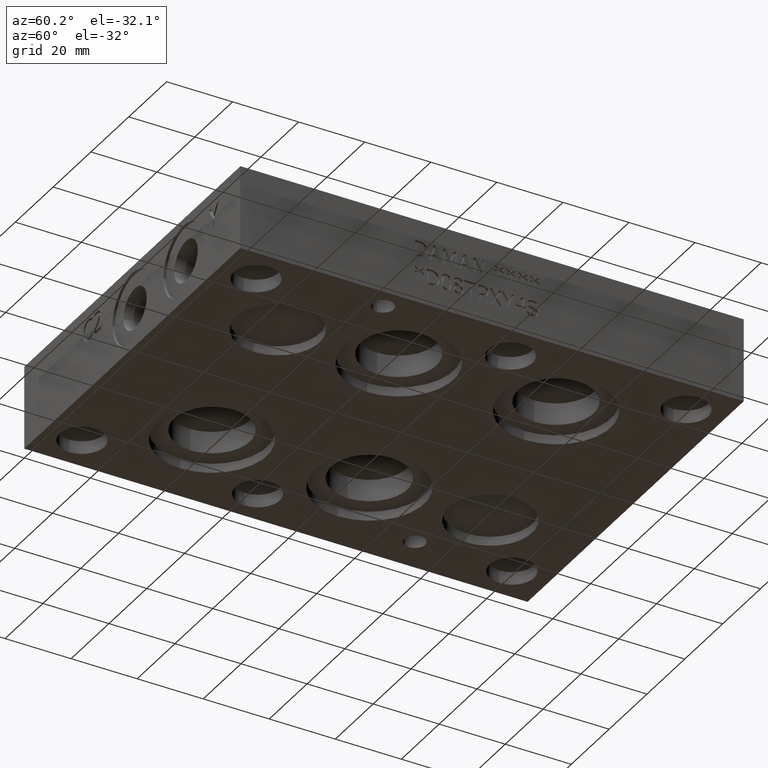
[diagram: clean part render]
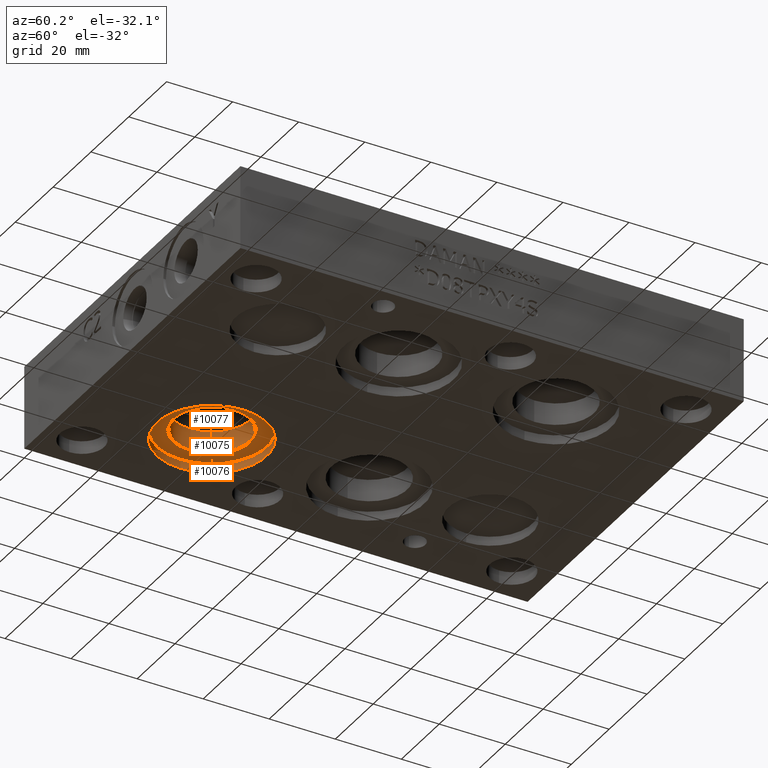
[diagram: same view with one multi-face feature highlighted, each face labeled with its STEP entity id]
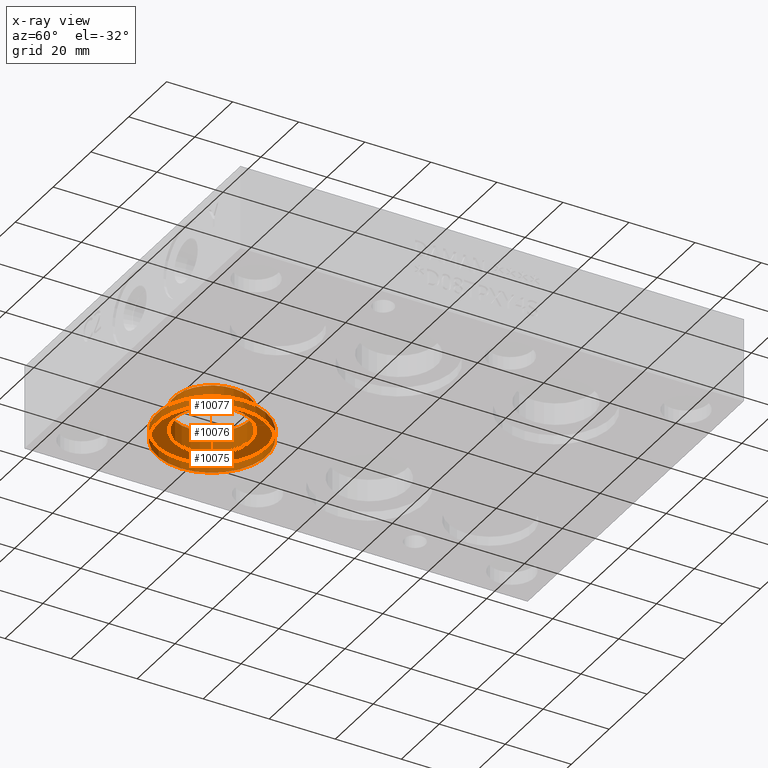
[diagram: x-ray of the same camera — body ghosted, the whole feature saturated]
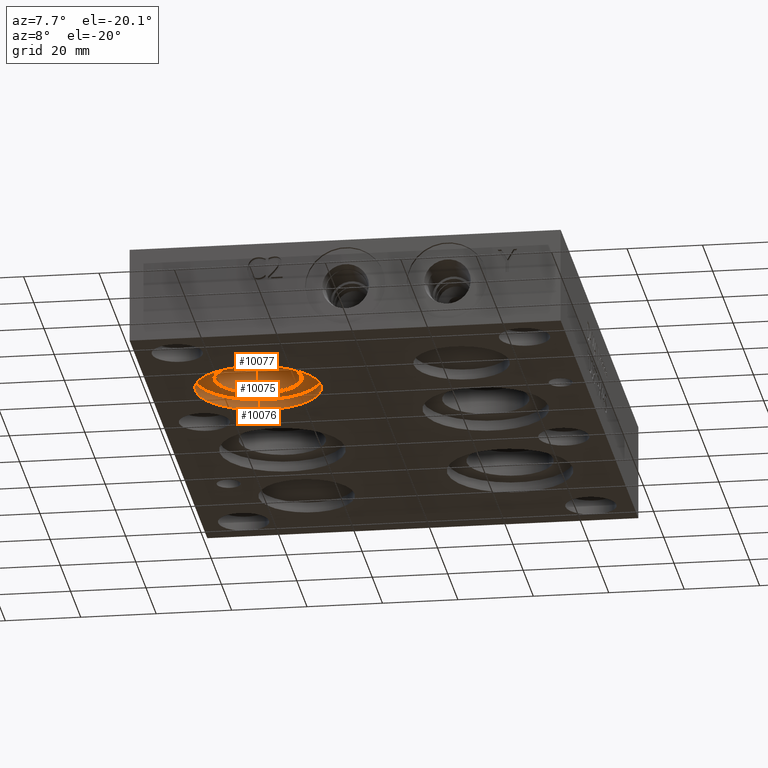
[diagram: same view with one multi-face feature highlighted, each face labeled with its STEP entity id]
A machine part, auxiliary view. The highlighted faces form ONE feature: a stepped (counterbored) hole: 2 coaxial cylindrical walls of radii 11.5062 -> 16.6751 mm joined by 1 annular planar shoulder face(s). The faces share edges in the B-rep.
The next image is the same camera in x-ray: the body ghosted and the whole hole feature saturated, so the bore chain is visible through the body.
A second angle (auxiliary view) of the same feature is appended — it is thin or edge-on in the first view.
Their STEP definitions:
[1] entity #10076 (Cylinder):
#39=CYLINDRICAL_SURFACE('',#10592,16.6751);
#168=CIRCLE('',#10589,16.6751);
#169=CIRCLE('',#10590,16.6751);
#171=CIRCLE('',#10593,16.6751);
#172=CIRCLE('',#10594,16.6751);
#1192=FACE_OUTER_BOUND('',#1742,.T.);
#1742=EDGE_LOOP('',(#8497,#8498,#8499,#8500,#8501,#8502));
#2746=LINE('',#16954,#3712);
#3712=VECTOR('',#12554,16.6751);
#4607=VERTEX_POINT('',#16943);
#4608=VERTEX_POINT('',#16944);
#4610=VERTEX_POINT('',#16950);
#4611=VERTEX_POINT('',#16951);
#5973=EDGE_CURVE('',#4607,#4608,#168,.T.);
#5974=EDGE_CURVE('',#4608,#4607,#169,.T.);
#5976=EDGE_CURVE('',#4610,#4611,#171,.T.);
#5977=EDGE_CURVE('',#4611,#4610,#172,.T.);
#5978=EDGE_CURVE('',#4611,#4608,#2746,.T.);
#8497=ORIENTED_EDGE('',*,*,#5976,.F.);
#8498=ORIENTED_EDGE('',*,*,#5977,.F.);
#8499=ORIENTED_EDGE('',*,*,#5978,.T.);
#8500=ORIENTED_EDGE('',*,*,#5973,.F.);
#8501=ORIENTED_EDGE('',*,*,#5974,.F.);
#8502=ORIENTED_EDGE('',*,*,#5978,.F.);
#10076=ADVANCED_FACE('',(#1192),#39,.F.);
#10589=AXIS2_PLACEMENT_3D('',#16945,#12542,#12543);
#10590=AXIS2_PLACEMENT_3D('',#16946,#12544,#12545);
#10592=AXIS2_PLACEMENT_3D('',#16949,#12548,#12549);
#10593=AXIS2_PLACEMENT_3D('',#16952,#12550,#12551);
#10594=AXIS2_PLACEMENT_3D('',#16953,#12552,#12553);
#12542=DIRECTION('center_axis',(0.,0.,-1.));
#12543=DIRECTION('ref_axis',(1.,0.,0.));
#12544=DIRECTION('center_axis',(0.,0.,-1.));
#12545=DIRECTION('ref_axis',(1.,0.,0.));
#12548=DIRECTION('center_axis',(0.,0.,-1.));
#12549=DIRECTION('ref_axis',(1.,0.,0.));
#12550=DIRECTION('center_axis',(0.,0.,1.));
#12551=DIRECTION('ref_axis',(1.,0.,0.));
#12552=DIRECTION('center_axis',(0.,0.,1.));
#12553=DIRECTION('ref_axis',(1.,0.,0.));
#12554=DIRECTION('',(0.,0.,1.));
#16943=CARTESIAN_POINT('',(45.2755,40.4622,2.794));
#16944=CARTESIAN_POINT('',(11.9253,40.4622,2.794));
#16945=CARTESIAN_POINT('Origin',(28.6004,40.4622,2.794));
#16946=CARTESIAN_POINT('Origin',(28.6004,40.4622,2.794));
#16949=CARTESIAN_POINT('Origin',(28.6004,40.4622,1.397));
#16950=CARTESIAN_POINT('',(45.2755,40.4622,0.));
#16951=CARTESIAN_POINT('',(11.9253,40.4622,0.));
#16952=CARTESIAN_POINT('Origin',(28.6004,40.4622,0.));
#16953=CARTESIAN_POINT('Origin',(28.6004,40.4622,0.));
#16954=CARTESIAN_POINT('',(11.9253,40.4622,1.397));
[2] entity #10077 (Cylinder):
#40=CYLINDRICAL_SURFACE('',#10595,11.5062);
#165=CIRCLE('',#10585,11.5062);
#167=CIRCLE('',#10587,11.5062);
#170=CIRCLE('',#10591,11.5062);
#1193=FACE_OUTER_BOUND('',#1743,.T.);
#1743=EDGE_LOOP('',(#8503,#8504,#8505,#8506,#8507));
#2747=LINE('',#16956,#3713);
#3713=VECTOR('',#12557,11.5062);
#4604=VERTEX_POINT('',#16935);
#4605=VERTEX_POINT('',#16936);
#4609=VERTEX_POINT('',#16947);
#5969=EDGE_CURVE('',#4604,#4605,#165,.T.);
#5972=EDGE_CURVE('',#4605,#4604,#167,.T.);
#5975=EDGE_CURVE('',#4609,#4609,#170,.T.);
#5979=EDGE_CURVE('',#4609,#4605,#2747,.T.);
#8503=ORIENTED_EDGE('',*,*,#5975,.T.);
#8504=ORIENTED_EDGE('',*,*,#5979,.T.);
#8505=ORIENTED_EDGE('',*,*,#5969,.F.);
#8506=ORIENTED_EDGE('',*,*,#5972,.F.);
#8507=ORIENTED_EDGE('',*,*,#5979,.F.);
#10077=ADVANCED_FACE('',(#1193),#40,.F.);
#10585=AXIS2_PLACEMENT_3D('',#16937,#12533,#12534);
#10587=AXIS2_PLACEMENT_3D('',#16941,#12538,#12539);
#10591=AXIS2_PLACEMENT_3D('',#16948,#12546,#12547);
#10595=AXIS2_PLACEMENT_3D('',#16955,#12555,#12556);
#12533=DIRECTION('center_axis',(0.,0.,-1.));
#12534=DIRECTION('ref_axis',(1.,0.,0.));
#12538=DIRECTION('center_axis',(0.,0.,-1.));
#12539=DIRECTION('ref_axis',(1.,0.,0.));
#12546=DIRECTION('center_axis',(0.,0.,-1.));
#12547=DIRECTION('ref_axis',(1.,0.,0.));
#12555=DIRECTION('center_axis',(0.,0.,-1.));
#12556=DIRECTION('ref_axis',(1.,0.,0.));
#12557=DIRECTION('',(0.,0.,1.));
#16935=CARTESIAN_POINT('',(40.1066,40.4622,9.43711));
#16936=CARTESIAN_POINT('',(17.0942,40.4622,9.43711));
#16937=CARTESIAN_POINT('Origin',(28.6004,40.4622,9.43711));
#16941=CARTESIAN_POINT('Origin',(28.6004,40.4622,9.43711));
#16947=CARTESIAN_POINT('',(17.0942,40.4622,2.794));
#16948=CARTESIAN_POINT('Origin',(28.6004,40.4622,2.794));
#16955=CARTESIAN_POINT('Origin',(28.6004,40.4622,4.718555));
#16956=CARTESIAN_POINT('',(17.0942,40.4622,4.718555));
[3] entity #10075 (Plane):
#168=CIRCLE('',#10589,16.6751);
#169=CIRCLE('',#10590,16.6751);
#170=CIRCLE('',#10591,11.5062);
#351=FACE_BOUND('',#1741,.T.);
#1191=FACE_OUTER_BOUND('',#1740,.T.);
#1740=EDGE_LOOP('',(#8494,#8495));
#1741=EDGE_LOOP('',(#8496));
#4607=VERTEX_POINT('',#16943);
#4608=VERTEX_POINT('',#16944);
#4609=VERTEX_POINT('',#16947);
#5973=EDGE_CURVE('',#4607,#4608,#168,.T.);
#5974=EDGE_CURVE('',#4608,#4607,#169,.T.);
#5975=EDGE_CURVE('',#4609,#4609,#170,.T.);
#8494=ORIENTED_EDGE('',*,*,#5973,.T.);
#8495=ORIENTED_EDGE('',*,*,#5974,.T.);
#8496=ORIENTED_EDGE('',*,*,#5975,.F.);
#9226=PLANE('',#10588);
#10075=ADVANCED_FACE('',(#1191,#351),#9226,.T.);
#10588=AXIS2_PLACEMENT_3D('',#16942,#12540,#12541);
#10589=AXIS2_PLACEMENT_3D('',#16945,#12542,#12543);
#10590=AXIS2_PLACEMENT_3D('',#16946,#12544,#12545);
#10591=AXIS2_PLACEMENT_3D('',#16948,#12546,#12547);
#12540=DIRECTION('center_axis',(0.,0.,-1.));
#12541=DIRECTION('ref_axis',(1.,0.,0.));
#12542=DIRECTION('center_axis',(0.,0.,-1.));
#12543=DIRECTION('ref_axis',(1.,0.,0.));
#12544=DIRECTION('center_axis',(0.,0.,-1.));
#12545=DIRECTION('ref_axis',(1.,0.,0.));
#12546=DIRECTION('center_axis',(0.,0.,-1.));
#12547=DIRECTION('ref_axis',(1.,0.,0.));
#16942=CARTESIAN_POINT('Origin',(28.6004,40.4622,2.794));
#16943=CARTESIAN_POINT('',(45.2755,40.4622,2.794));
#16944=CARTESIAN_POINT('',(11.9253,40.4622,2.794));
#16945=CARTESIAN_POINT('Origin',(28.6004,40.4622,2.794));
#16946=CARTESIAN_POINT('Origin',(28.6004,40.4622,2.794));
#16947=CARTESIAN_POINT('',(17.0942,40.4622,2.794));
#16948=CARTESIAN_POINT('Origin',(28.6004,40.4622,2.794));